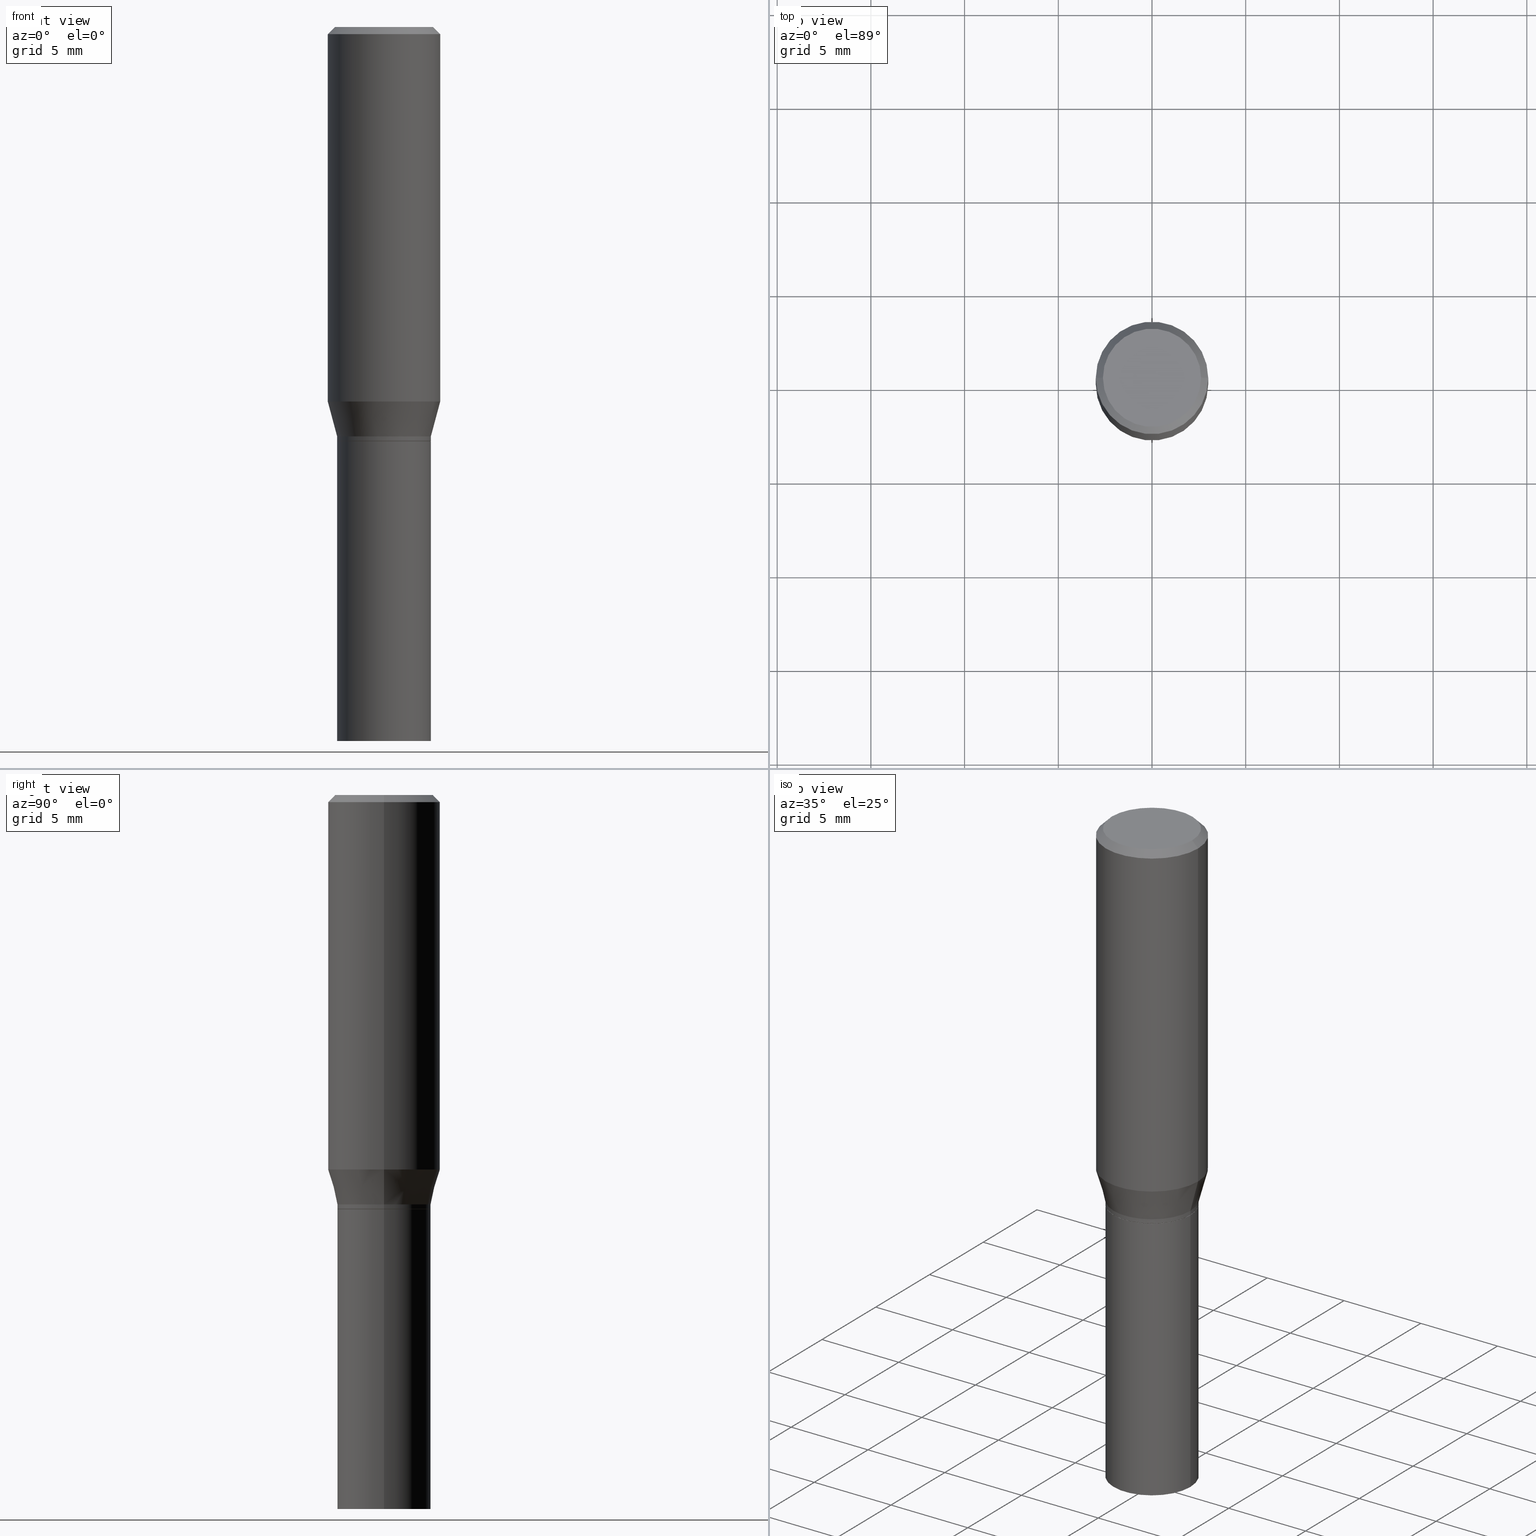
[diagram: canonical four-view strip — front | top / right | iso, engineering-drawing reading convention]
A machine part, canonical four-view strip (front | top / right | iso — engineering-drawing reading convention). The complete STEP part file that produces these views, byte-faithful:
ISO-10303-21;
HEADER;
FILE_DESCRIPTION (( 'STEP AP203' ),
    '1' );
FILE_NAME ('48764.STEP',
    '2024-03-12T19:46:37',
    ( '' ),
    ( '' ),
    'SwSTEP 2.0',
    'SolidWorks 2023',
    '' );
FILE_SCHEMA (( 'CONFIG_CONTROL_DESIGN' ));
ENDSEC;

DATA;
#1 = CARTESIAN_POINT ( 'NONE',  ( -0.1180999999999999966, -5.605231488820216014E-16, -0.01499999999999999944 ) ) ;
#2 = AXIS2_PLACEMENT_3D ( 'NONE', #228, #89, #384 ) ;
#3 = LOCAL_TIME ( 15, 46, 37.00000000000000000, #78 ) ;
#4 = EDGE_LOOP ( 'NONE', ( #192, #173, #324, #85 ) ) ;
#5 = PERSON_AND_ORGANIZATION ( #108, #209 ) ;
#6 = DIRECTION ( 'NONE',  ( 2.445468806185136597E-29, -3.491481338843145583E-15, -1.000000000000000000 ) ) ;
#7 = APPLICATION_PROTOCOL_DEFINITION ( 'international standard', 'config_control_design', 1994, #184 ) ;
#8 = PRODUCT_DEFINITION_FORMATION_WITH_SPECIFIED_SOURCE ( 'ANY', '', #127, .NOT_KNOWN. ) ;
#9 = SHAPE_DEFINITION_REPRESENTATION ( #56, #102 ) ;
#10 = EDGE_CURVE ( 'NONE', #82, #258, #183, .T. ) ;
#11 = COORDINATED_UNIVERSAL_TIME_OFFSET ( 5, 0, .BEHIND. ) ;
#12 = VERTEX_POINT ( 'NONE', #271 ) ;
#13 = DIRECTION ( 'NONE',  ( 1.000000000000000000, -6.982962677686267499E-15, 0.000000000000000000 ) ) ;
#14 = AXIS2_PLACEMENT_3D ( 'NONE', #18, #303, #174 ) ;
#15 = CARTESIAN_POINT ( 'NONE',  ( 0.09844999999999999585, -6.874726756182129545E-16, 4.800596035771099214E-30 ) ) ;
#16 = DIRECTION ( 'NONE',  ( -2.445468806185136597E-29, 3.491481338843145583E-15, 1.000000000000000000 ) ) ;
#17 = EDGE_LOOP ( 'NONE', ( #387, #392 ) ) ;
#18 = CARTESIAN_POINT ( 'NONE',  ( 4.647400995173613138E-45, -6.635256932220833331E-31, -1.900413116462290932E-16 ) ) ;
#19 = CYLINDRICAL_SURFACE ( 'NONE', #112, 0.1180999999999999966 ) ;
#20 = DIRECTION ( 'NONE',  ( -0.2588190451025215166, 5.211531920934551042E-15, 0.9659258262890679791 ) ) ;
#21 = ORIENTED_EDGE ( 'NONE', *, *, #117, .T. ) ;
#22 = DIRECTION ( 'NONE',  ( 0.7071067811863663843, -2.468850131080359456E-15, 0.7071067811867286501 ) ) ;
#23 = DIRECTION ( 'NONE',  ( -2.445468806185136597E-29, 3.491481338843145583E-15, 1.000000000000000000 ) ) ;
#24 = CYLINDRICAL_SURFACE ( 'NONE', #391, 0.09845000000000005136 ) ;
#25 = ORIENTED_EDGE ( 'NONE', *, *, #93, .F. ) ;
#26 = DIRECTION ( 'NONE',  ( -2.445468806185136597E-29, 3.491481338843145583E-15, 1.000000000000000000 ) ) ;
#27 = DIRECTION ( 'NONE',  ( 1.000000000000000000, -6.982962677686266711E-15, 4.876176775795936353E-29 ) ) ;
#28 = CARTESIAN_POINT ( 'NONE',  ( 3.668203209277705088E-31, -5.237222008264718399E-17, -0.01499999999999999944 ) ) ;
#29 = ORIENTED_EDGE ( 'NONE', *, *, #338, .T. ) ;
#30 = CARTESIAN_POINT ( 'NONE',  ( 3.668203209277705088E-31, -5.237222008264718399E-17, -0.01499999999999999944 ) ) ;
#31 = DIRECTION ( 'NONE',  ( 0.000000000000000000, 0.000000000000000000, 1.000000000000000000 ) ) ;
#32 =( CONVERSION_BASED_UNIT ( 'INCH', #99 ) LENGTH_UNIT ( ) NAMED_UNIT ( #130 ) );
#33 = CONICAL_SURFACE ( 'NONE', #70, 0.09845000000000017626, 0.2617993877991502405 ) ;
#34 = AXIS2_PLACEMENT_3D ( 'NONE', #371, #23, #377 ) ;
#35 = AXIS2_PLACEMENT_3D ( 'NONE', #427, #422, #313 ) ;
#36 = MECHANICAL_CONTEXT ( 'NONE', #283, 'mechanical' ) ;
#37 = ADVANCED_FACE ( 'NONE', ( #307 ), #66, .T. ) ;
#38 = DATE_AND_TIME ( #291, #44 ) ;
#39 = COORDINATED_UNIVERSAL_TIME_OFFSET ( 5, 0, .BEHIND. ) ;
#40 = AXIS2_PLACEMENT_3D ( 'NONE', #456, #16, #53 ) ;
#41 = EDGE_LOOP ( 'NONE', ( #139, #21, #354, #113 ) ) ;
#42 = CONICAL_SURFACE ( 'NONE', #213, 0.1180999999999999966, 0.7853981633974543852 ) ;
#43 = APPROVAL_STATUS ( 'not_yet_approved' ) ;
#44 = LOCAL_TIME ( 15, 46, 37.00000000000000000, #73 ) ;
#45 = CC_DESIGN_PERSON_AND_ORGANIZATION_ASSIGNMENT ( #328, #367, ( #8 ) ) ;
#46 = LINE ( 'NONE', #191, #186 ) ;
#47 = CARTESIAN_POINT ( 'NONE',  ( 0.09794999999999999540, -3.721919107206791548E-15, -0.8701000000000002066 ) ) ;
#48 = CARTESIAN_POINT ( 'NONE',  ( 2.103347720199836269E-29, -3.003023099538989951E-15, -0.8601000000000000867 ) ) ;
#49 = ORIENTED_EDGE ( 'NONE', *, *, #97, .F. ) ;
#50 = AXIS2_PLACEMENT_3D ( 'NONE', #196, #419, #454 ) ;
#51 = CARTESIAN_POINT ( 'NONE',  ( 2.103347720199836269E-29, -3.003023099538989951E-15, -0.8601000000000000867 ) ) ;
#52 = CARTESIAN_POINT ( 'NONE',  ( 0.09845000000000017626, -3.690495775157203695E-15, -0.8601000000000000867 ) ) ;
#53 = DIRECTION ( 'NONE',  ( 1.000000000000000000, -6.982962677686265133E-15, 0.000000000000000000 ) ) ;
#54 = ORIENTED_EDGE ( 'NONE', *, *, #167, .T. ) ;
#55 = CARTESIAN_POINT ( 'NONE',  ( 0.000000000000000000, 0.000000000000000000, 0.000000000000000000 ) ) ;
#56 = PRODUCT_DEFINITION_SHAPE ( 'NONE', 'NONE',  #292 ) ;
#57 = FACE_OUTER_BOUND ( 'NONE', #347, .T. ) ;
#58 = FACE_OUTER_BOUND ( 'NONE', #374, .T. ) ;
#59 = EDGE_LOOP ( 'NONE', ( #273, #362, #276, #426 ) ) ;
#60 = DIRECTION ( 'NONE',  ( -2.445468806185136597E-29, 3.491481338843145583E-15, 1.000000000000000000 ) ) ;
#61 = CARTESIAN_POINT ( 'NONE',  ( 0.09845000000000005136, -6.874726756182133489E-16, 4.800596035771100615E-30 ) ) ;
#62 = CARTESIAN_POINT ( 'NONE',  ( 0.1180999999999999966, -8.246878922347480654E-16, 5.758764772215000440E-30 ) ) ;
#63 = ORIENTED_EDGE ( 'NONE', *, *, #444, .T. ) ;
#64 =( LENGTH_UNIT ( ) NAMED_UNIT ( * ) SI_UNIT ( $, .METRE. ) );
#65 = ADVANCED_FACE ( 'NONE', ( #90 ), #342, .F. ) ;
#66 = CONICAL_SURFACE ( 'NONE', #458, 0.09794999999999999540, 0.7853981633971921505 ) ;
#67 = AXIS2_PLACEMENT_3D ( 'NONE', #159, #351, #460 ) ;
#68 = VECTOR ( 'NONE', #262, 39.37007874015748854 ) ;
#69 = ADVANCED_FACE ( 'NONE', ( #385 ), #219, .F. ) ;
#70 = AXIS2_PLACEMENT_3D ( 'NONE', #51, #60, #162 ) ;
#71 = VERTEX_POINT ( 'NONE', #298 ) ;
#72 = CALENDAR_DATE ( 2024, 12, 3 ) ;
#73 = COORDINATED_UNIVERSAL_TIME_OFFSET ( 5, 0, .BEHIND. ) ;
#74 = EDGE_CURVE ( 'NONE', #188, #290, #205, .T. ) ;
#75 = CIRCLE ( 'NONE', #140, 0.1180999999999999966 ) ;
#76 = CC_DESIGN_PERSON_AND_ORGANIZATION_ASSIGNMENT ( #443, #370, ( #8 ) ) ;
#77 = VECTOR ( 'NONE', #415, 39.37007874015748143 ) ;
#78 = COORDINATED_UNIVERSAL_TIME_OFFSET ( 5, 0, .BEHIND. ) ;
#79 = DIRECTION ( 'NONE',  ( -2.445468806185136597E-29, 3.491481338843145583E-15, 1.000000000000000000 ) ) ;
#80 = CARTESIAN_POINT ( 'NONE',  ( 0.000000000000000000, 0.000000000000000000, 0.000000000000000000 ) ) ;
#81 = DIRECTION ( 'NONE',  ( -2.445468806185136597E-29, 3.491481338843145583E-15, 1.000000000000000000 ) ) ;
#82 = VERTEX_POINT ( 'NONE', #314 ) ;
#83 = CARTESIAN_POINT ( 'NONE',  ( 0.09844999999999999585, -5.924694683882931526E-15, -1.500000000000000222 ) ) ;
#84 = DIRECTION ( 'NONE',  ( -2.445468806185136877E-29, 3.491481338843145188E-15, 1.000000000000000000 ) ) ;
#85 = ORIENTED_EDGE ( 'NONE', *, *, #336, .F. ) ;
#86 = DIRECTION ( 'NONE',  ( -2.445468806185136597E-29, 3.491481338843145583E-15, 1.000000000000000000 ) ) ;
#87 = CARTESIAN_POINT ( 'NONE',  ( 2.127802408261687534E-29, -3.037937912927421601E-15, -0.8701000000000000956 ) ) ;
#88 = ORIENTED_EDGE ( 'NONE', *, *, #74, .F. ) ;
#89 = DIRECTION ( 'NONE',  ( -2.438088387897960049E-29, 3.491481338843145188E-15, 1.000000000000000000 ) ) ;
#90 = FACE_OUTER_BOUND ( 'NONE', #145, .T. ) ;
#91 = DIRECTION ( 'NONE',  ( -2.445468806185136877E-29, 3.491481338843145188E-15, 1.000000000000000000 ) ) ;
#92 = EDGE_LOOP ( 'NONE', ( #462, #439, #217, #365 ) ) ;
#93 = EDGE_CURVE ( 'NONE', #429, #438, #267, .T. ) ;
#94 = DIRECTION ( 'NONE',  ( -2.445468806185136597E-29, 3.491481338843145583E-15, 1.000000000000000000 ) ) ;
#95 = FACE_OUTER_BOUND ( 'NONE', #180, .T. ) ;
#96 = ORIENTED_EDGE ( 'NONE', *, *, #212, .T. ) ;
#97 = EDGE_CURVE ( 'NONE', #133, #156, #115, .T. ) ;
#98 = EDGE_CURVE ( 'NONE', #156, #198, #208, .T. ) ;
#99 = LENGTH_MEASURE_WITH_UNIT ( LENGTH_MEASURE( 0.02539999999999999897 ), #64 );
#100 = AXIS2_PLACEMENT_3D ( 'NONE', #87, #172, #296 ) ;
#101 = CIRCLE ( 'NONE', #35, 0.09794999999999999540 ) ;
#102 = ADVANCED_BREP_SHAPE_REPRESENTATION ( '48764', ( #437, #125, #157 ), #142 ) ;
#103 = EDGE_CURVE ( 'NONE', #156, #12, #266, .T. ) ;
#104 = PERSON_AND_ORGANIZATION ( #108, #209 ) ;
#105 = AXIS2_PLACEMENT_3D ( 'NONE', #410, #372, #158 ) ;
#106 = AXIS2_PLACEMENT_3D ( 'NONE', #236, #200, #388 ) ;
#107 = PERSON_AND_ORGANIZATION_ROLE ( 'classification_officer' ) ;
#108 = PERSON ( 'UNSPECIFIED', 'UNSPECIFIED', 'UNSPECIFIED', ('UNSPECIFIED'), ('UNSPECIFIED'), ('UNSPECIFIED') ) ;
#109 = CALENDAR_DATE ( 2024, 12, 3 ) ;
#110 = ADVANCED_FACE ( 'NONE', ( #57 ), #194, .F. ) ;
#111 = APPROVAL_STATUS ( 'not_yet_approved' ) ;
#112 = AXIS2_PLACEMENT_3D ( 'NONE', #80, #414, #27 ) ;
#113 = ORIENTED_EDGE ( 'NONE', *, *, #323, .F. ) ;
#114 = AXIS2_PLACEMENT_3D ( 'NONE', #30, #346, #309 ) ;
#115 = LINE ( 'NONE', #61, #225 ) ;
#116 = ORIENTED_EDGE ( 'NONE', *, *, #171, .T. ) ;
#117 = EDGE_CURVE ( 'NONE', #71, #238, #201, .T. ) ;
#118 = CARTESIAN_POINT ( 'NONE',  ( 0.09845000000000017626, -3.690495775157203695E-15, -0.8601000000000000867 ) ) ;
#119 = CARTESIAN_POINT ( 'NONE',  ( -0.1180999999999999966, 7.723156721521009862E-16, -0.01499999999999999944 ) ) ;
#120 = EDGE_LOOP ( 'NONE', ( #226, #144, #161, #379 ) ) ;
#121 = CARTESIAN_POINT ( 'NONE',  ( -0.09844999999999999585, 6.995293233558186035E-16, -4.842691596355954042E-30 ) ) ;
#122 = CARTESIAN_POINT ( 'NONE',  ( 0.1180999999999999966, -8.770601123173952432E-16, -0.01499999999999999944 ) ) ;
#123 = PRODUCT_RELATED_PRODUCT_CATEGORY ( 'detail', '', ( #127 ) ) ;
#124 = DIRECTION ( 'NONE',  ( 1.000000000000000000, -6.982962677686267499E-15, 0.000000000000000000 ) ) ;
#125 = MANIFOLD_SOLID_BREP ( 'Body-Move/Copy2[2]', #435 ) ;
#126 = ORIENTED_EDGE ( 'NONE', *, *, #141, .T. ) ;
#127 = PRODUCT ( '48764', '48764', '', ( #36 ) ) ;
#128 = CARTESIAN_POINT ( 'NONE',  ( 0.1031000000000000111, -7.849571885948552706E-16, -1.900413116462238423E-16 ) ) ;
#129 = LOCAL_TIME ( 15, 46, 37.00000000000000000, #11 ) ;
#130 = DIMENSIONAL_EXPONENTS ( 1.000000000000000000, 0.000000000000000000, 0.000000000000000000, 0.000000000000000000, 0.000000000000000000, 0.000000000000000000, 0.000000000000000000 ) ;
#131 = DIRECTION ( 'NONE',  ( 1.000000000000000000, -6.982962677686266711E-15, 0.000000000000000000 ) ) ;
#132 = LINE ( 'NONE', #237, #418 ) ;
#133 = VERTEX_POINT ( 'NONE', #337 ) ;
#134 = CARTESIAN_POINT ( 'NONE',  ( 0.09794999999999999540, -3.721919107206791548E-15, -0.8701000000000002066 ) ) ;
#135 = DIRECTION ( 'NONE',  ( 1.000000000000000000, -6.982962677686265922E-15, 0.000000000000000000 ) ) ;
#136 = ORIENTED_EDGE ( 'NONE', *, *, #93, .T. ) ;
#137 = CARTESIAN_POINT ( 'NONE',  ( 2.126579673858595013E-29, -3.036192172257999703E-15, -0.8696000000000000396 ) ) ;
#138 = DIRECTION ( 'NONE',  ( -2.445468806185136597E-29, 3.491481338843145583E-15, 1.000000000000000000 ) ) ;
#139 = ORIENTED_EDGE ( 'NONE', *, *, #247, .T. ) ;
#140 = AXIS2_PLACEMENT_3D ( 'NONE', #160, #299, #382 ) ;
#141 = EDGE_CURVE ( 'NONE', #204, #290, #223, .T. ) ;
#142 =( GEOMETRIC_REPRESENTATION_CONTEXT ( 3 ) GLOBAL_UNCERTAINTY_ASSIGNED_CONTEXT ( ( #395 ) ) GLOBAL_UNIT_ASSIGNED_CONTEXT ( ( #32, #279, #143 ) ) REPRESENTATION_CONTEXT ( 'NONE', 'WORKASPACE' ) );
#143 =( NAMED_UNIT ( * ) SI_UNIT ( $, .STERADIAN. ) SOLID_ANGLE_UNIT ( ) );
#144 = ORIENTED_EDGE ( 'NONE', *, *, #405, .T. ) ;
#145 = EDGE_LOOP ( 'NONE', ( #220, #311 ) ) ;
#146 = FACE_OUTER_BOUND ( 'NONE', #169, .T. ) ;
#147 = PERSON_AND_ORGANIZATION ( #108, #209 ) ;
#148 = DATE_AND_TIME ( #109, #211 ) ;
#149 = AXIS2_PLACEMENT_3D ( 'NONE', #340, #221, #302 ) ;
#150 = DATE_TIME_ROLE ( 'creation_date' ) ;
#151 = ADVANCED_FACE ( 'NONE', ( #423 ), #19, .T. ) ;
#152 = ADVANCED_FACE ( 'NONE', ( #257 ), #216, .T. ) ;
#153 = SECURITY_CLASSIFICATION_LEVEL ( 'unclassified' ) ;
#154 = CARTESIAN_POINT ( 'NONE',  ( 2.127802408261687814E-29, -3.037937912927421995E-15, -0.8701000000000002066 ) ) ;
#155 = AXIS2_PLACEMENT_3D ( 'NONE', #393, #349, #434 ) ;
#156 = VERTEX_POINT ( 'NONE', #52 ) ;
#157 = AXIS2_PLACEMENT_3D ( 'NONE', #207, #31, #318 ) ;
#158 = DIRECTION ( 'NONE',  ( 1.000000000000000000, -6.982962677686266711E-15, 4.876176775795936353E-29 ) ) ;
#159 = CARTESIAN_POINT ( 'NONE',  ( 3.576687321579069994E-29, -5.368277968210015545E-15, -1.500000000000000222 ) ) ;
#160 = CARTESIAN_POINT ( 'NONE',  ( 1.924009758381236534E-29, -2.746976019546752715E-15, -0.7867652016312725038 ) ) ;
#161 = ORIENTED_EDGE ( 'NONE', *, *, #323, .T. ) ;
#162 = DIRECTION ( 'NONE',  ( 1.000000000000000000, -6.982962677686267499E-15, 0.000000000000000000 ) ) ;
#163 = CARTESIAN_POINT ( 'NONE',  ( 2.126579673858595013E-29, -3.036192172257999703E-15, -0.8696000000000000396 ) ) ;
#164 = DIRECTION ( 'NONE',  ( -1.000000000000000000, 6.982962677686266711E-15, 0.000000000000000000 ) ) ;
#165 = ORIENTED_EDGE ( 'NONE', *, *, #329, .F. ) ;
#166 = CARTESIAN_POINT ( 'NONE',  ( -0.09844999999999999585, -3.438050637240251581E-15, -0.8701000000000000956 ) ) ;
#167 = EDGE_CURVE ( 'NONE', #133, #258, #294, .T. ) ;
#168 = DIRECTION ( 'NONE',  ( -2.445468806185136597E-29, 3.491481338843145583E-15, 1.000000000000000000 ) ) ;
#169 = EDGE_LOOP ( 'NONE', ( #268, #96, #126, #88 ) ) ;
#170 = AXIS2_PLACEMENT_3D ( 'NONE', #430, #94, #222 ) ;
#171 = EDGE_CURVE ( 'NONE', #429, #466, #46, .T. ) ;
#172 = DIRECTION ( 'NONE',  ( -2.445468806185136597E-29, 3.491481338843145583E-15, 1.000000000000000000 ) ) ;
#173 = ORIENTED_EDGE ( 'NONE', *, *, #214, .T. ) ;
#174 = DIRECTION ( 'NONE',  ( 1.000000000000000000, -6.982962677686265922E-15, 4.883331232093008327E-29 ) ) ;
#175 = DIRECTION ( 'NONE',  ( -2.445468806185136597E-29, 3.491481338843145583E-15, 1.000000000000000000 ) ) ;
#176 = ADVANCED_FACE ( 'NONE', ( #275 ), #321, .T. ) ;
#177 = VECTOR ( 'NONE', #22, 39.37007874015748143 ) ;
#178 = EDGE_CURVE ( 'NONE', #198, #156, #389, .T. ) ;
#179 = ADVANCED_FACE ( 'NONE', ( #146 ), #386, .T. ) ;
#180 = EDGE_LOOP ( 'NONE', ( #25, #116, #29, #263 ) ) ;
#181 = APPROVAL_DATE_TIME ( #406, #253 ) ;
#182 = DATE_AND_TIME ( #254, #285 ) ;
#183 = LINE ( 'NONE', #401, #248 ) ;
#184 = APPLICATION_CONTEXT ( 'configuration controlled 3d designs of mechanical parts and assemblies' ) ;
#185 = APPROVAL_DATE_TIME ( #38, #288 ) ;
#186 = VECTOR ( 'NONE', #333, 39.37007874015748854 ) ;
#187 = APPROVAL_PERSON_ORGANIZATION ( #440, #288, #441 ) ;
#188 = VERTEX_POINT ( 'NONE', #166 ) ;
#189 = DATE_AND_TIME ( #72, #3 ) ;
#190 = ADVANCED_FACE ( 'NONE', ( #421 ), #447, .T. ) ;
#191 = CARTESIAN_POINT ( 'NONE',  ( 0.1180999999999999966, -8.625970336194650129E-16, -0.01499999999999999944 ) ) ;
#192 = ORIENTED_EDGE ( 'NONE', *, *, #10, .F. ) ;
#193 = CARTESIAN_POINT ( 'NONE',  ( -0.1031000000000000111, 7.461295621107772493E-16, -1.900413116462341961E-16 ) ) ;
#194 = PLANE ( 'NONE',  #368 ) ;
#195 = EDGE_LOOP ( 'NONE', ( #339, #306, #231, #326 ) ) ;
#196 = CARTESIAN_POINT ( 'NONE',  ( 6.874726756182340565E-16, 0.09844999999999695661, -0.8701000000000005397 ) ) ;
#197 = CARTESIAN_POINT ( 'NONE',  ( -0.09844999999999991258, -2.336662848902181986E-15, -0.8696000000000000396 ) ) ;
#198 = VERTEX_POINT ( 'NONE', #232 ) ;
#199 = EDGE_CURVE ( 'NONE', #316, #188, #259, .T. ) ;
#200 = DIRECTION ( 'NONE',  ( -2.445468806185136597E-29, 3.491481338843145583E-15, 1.000000000000000000 ) ) ;
#201 = LINE ( 'NONE', #261, #363 ) ;
#202 = ORIENTED_EDGE ( 'NONE', *, *, #425, .F. ) ;
#203 = DIRECTION ( 'NONE',  ( 0.2588190451025215166, 1.565188264969620784E-15, 0.9659258262890679791 ) ) ;
#204 = VERTEX_POINT ( 'NONE', #83 ) ;
#205 = CIRCLE ( 'NONE', #100, 0.09844999999999999585 ) ;
#206 = DIRECTION ( 'NONE',  ( -2.445468806185136597E-29, 3.491481338843145583E-15, 1.000000000000000000 ) ) ;
#207 = CARTESIAN_POINT ( 'NONE',  ( 0.000000000000000000, 0.000000000000000000, 0.000000000000000000 ) ) ;
#208 = CIRCLE ( 'NONE', #210, 0.09845000000000017626 ) ;
#209 = ORGANIZATION ( 'UNSPECIFIED', 'UNSPECIFIED', '' ) ;
#210 = AXIS2_PLACEMENT_3D ( 'NONE', #48, #450, #124 ) ;
#211 = LOCAL_TIME ( 15, 46, 37.00000000000000000, #39 ) ;
#212 = EDGE_CURVE ( 'NONE', #316, #204, #359, .T. ) ;
#213 = AXIS2_PLACEMENT_3D ( 'NONE', #245, #6, #218 ) ;
#214 = EDGE_CURVE ( 'NONE', #82, #383, #284, .T. ) ;
#215 = CALENDAR_DATE ( 2024, 12, 3 ) ;
#216 = CYLINDRICAL_SURFACE ( 'NONE', #34, 0.09845000000000005136 ) ;
#217 = ORIENTED_EDGE ( 'NONE', *, *, #286, .F. ) ;
#218 = DIRECTION ( 'NONE',  ( -1.000000000000000000, 6.982962677686266711E-15, 0.000000000000000000 ) ) ;
#219 = PLANE ( 'NONE',  #50 ) ;
#220 = ORIENTED_EDGE ( 'NONE', *, *, #409, .F. ) ;
#221 = DIRECTION ( 'NONE',  ( -2.445468806185136597E-29, 3.491481338843145583E-15, 1.000000000000000000 ) ) ;
#222 = DIRECTION ( 'NONE',  ( 1.000000000000000000, -6.982962677686265922E-15, 0.000000000000000000 ) ) ;
#223 = LINE ( 'NONE', #15, #278 ) ;
#224 = FACE_OUTER_BOUND ( 'NONE', #59, .T. ) ;
#225 = VECTOR ( 'NONE', #229, 39.37007874015748143 ) ;
#226 = ORIENTED_EDGE ( 'NONE', *, *, #117, .F. ) ;
#227 = CONICAL_SURFACE ( 'NONE', #353, 0.09845000000000017626, 0.2617993877991502405 ) ;
#228 = CARTESIAN_POINT ( 'NONE',  ( 2.127802408261687534E-29, -3.037937912927421601E-15, -0.8701000000000000956 ) ) ;
#229 = DIRECTION ( 'NONE',  ( -2.445468806185136877E-29, 3.491481338843145188E-15, 1.000000000000000000 ) ) ;
#230 = CC_DESIGN_PERSON_AND_ORGANIZATION_ASSIGNMENT ( #104, #107, ( #312 ) ) ;
#231 = ORIENTED_EDGE ( 'NONE', *, *, #247, .F. ) ;
#232 = CARTESIAN_POINT ( 'NONE',  ( -0.09845000000000017626, -2.105659412398621996E-15, -0.8601000000000000867 ) ) ;
#233 = DIRECTION ( 'NONE',  ( 1.000000000000000000, -6.982962677686265922E-15, 4.883331232093008327E-29 ) ) ;
#234 = DIRECTION ( 'NONE',  ( 1.000000000000000000, -6.982962677686266711E-15, 0.000000000000000000 ) ) ;
#235 = ORIENTED_EDGE ( 'NONE', *, *, #178, .T. ) ;
#236 = CARTESIAN_POINT ( 'NONE',  ( 0.000000000000000000, 0.000000000000000000, 0.000000000000000000 ) ) ;
#237 = CARTESIAN_POINT ( 'NONE',  ( -0.09845000000000017626, -2.303493776183169474E-15, -0.8601000000000000867 ) ) ;
#238 = VERTEX_POINT ( 'NONE', #1 ) ;
#239 = AXIS2_PLACEMENT_3D ( 'NONE', #408, #81, #233 ) ;
#240 = CIRCLE ( 'NONE', #269, 0.1180999999999999966 ) ;
#241 = ADVANCED_FACE ( 'NONE', ( #95 ), #243, .T. ) ;
#242 = CLOSED_SHELL ( 'NONE', ( #445, #65, #179, #69 ) ) ;
#243 = CONICAL_SURFACE ( 'NONE', #417, 0.1180999999999999966, 0.7853981633974543852 ) ;
#244 = CC_DESIGN_APPROVAL ( #288, ( #8 ) ) ;
#245 = CARTESIAN_POINT ( 'NONE',  ( 3.668203209277705088E-31, -5.237222008264718399E-17, -0.01499999999999999944 ) ) ;
#246 = PERSON_AND_ORGANIZATION ( #108, #209 ) ;
#247 = EDGE_CURVE ( 'NONE', #12, #71, #75, .T. ) ;
#248 = VECTOR ( 'NONE', #304, 39.37007874015748143 ) ;
#249 = EDGE_CURVE ( 'NONE', #238, #466, #360, .T. ) ;
#250 = AXIS2_PLACEMENT_3D ( 'NONE', #378, #206, #135 ) ;
#251 = ORIENTED_EDGE ( 'NONE', *, *, #286, .T. ) ;
#252 = PERSON_AND_ORGANIZATION ( #108, #209 ) ;
#253 = APPROVAL ( #111, 'UNSPECIFIED' ) ;
#254 = CALENDAR_DATE ( 2024, 12, 3 ) ;
#255 = PERSON_AND_ORGANIZATION_ROLE ( 'creator' ) ;
#256 = CC_DESIGN_APPROVAL ( #282, ( #312 ) ) ;
#257 = FACE_OUTER_BOUND ( 'NONE', #412, .T. ) ;
#258 = VERTEX_POINT ( 'NONE', #197 ) ;
#259 = LINE ( 'NONE', #121, #376 ) ;
#260 = FACE_OUTER_BOUND ( 'NONE', #195, .T. ) ;
#261 = CARTESIAN_POINT ( 'NONE',  ( -0.1180999999999999966, 8.391509709326782957E-16, -5.809262341591043784E-30 ) ) ;
#262 = DIRECTION ( 'NONE',  ( -0.7071067811865516806, 2.468850131082300842E-15, -0.7071067811865431318 ) ) ;
#263 = ORIENTED_EDGE ( 'NONE', *, *, #348, .F. ) ;
#264 = DIRECTION ( 'NONE',  ( -2.445468806185136877E-29, 3.491481338843145188E-15, 1.000000000000000000 ) ) ;
#265 = LINE ( 'NONE', #47, #177 ) ;
#266 = LINE ( 'NONE', #118, #403 ) ;
#267 = CIRCLE ( 'NONE', #239, 0.1031000000000000111 ) ;
#268 = ORIENTED_EDGE ( 'NONE', *, *, #199, .F. ) ;
#269 = AXIS2_PLACEMENT_3D ( 'NONE', #28, #390, #277 ) ;
#270 = DIRECTION ( 'NONE',  ( 1.000000000000000000, -6.982962677686269077E-15, 0.000000000000000000 ) ) ;
#271 = CARTESIAN_POINT ( 'NONE',  ( 0.1180999999999999966, -3.571663911781501372E-15, -0.7867652016312725038 ) ) ;
#272 = LINE ( 'NONE', #424, #322 ) ;
#273 = ORIENTED_EDGE ( 'NONE', *, *, #171, .F. ) ;
#274 = PLANE ( 'NONE',  #2 ) ;
#275 = FACE_OUTER_BOUND ( 'NONE', #297, .T. ) ;
#276 = ORIENTED_EDGE ( 'NONE', *, *, #348, .T. ) ;
#277 = DIRECTION ( 'NONE',  ( 1.000000000000000000, -6.982962677686266711E-15, 0.000000000000000000 ) ) ;
#278 = VECTOR ( 'NONE', #345, 39.37007874015748143 ) ;
#279 =( NAMED_UNIT ( * ) PLANE_ANGLE_UNIT ( ) SI_UNIT ( $, .RADIAN. ) );
#280 = EDGE_LOOP ( 'NONE', ( #251, #420 ) ) ;
#281 = ADVANCED_FACE ( 'NONE', ( #58 ), #24, .T. ) ;
#282 = APPROVAL ( #43, 'UNSPECIFIED' ) ;
#283 = APPLICATION_CONTEXT ( 'configuration controlled 3d designs of mechanical parts and assemblies' ) ;
#284 = CIRCLE ( 'NONE', #40, 0.09794999999999999540 ) ;
#285 = LOCAL_TIME ( 15, 46, 37.00000000000000000, #404 ) ;
#286 = EDGE_CURVE ( 'NONE', #290, #188, #442, .T. ) ;
#287 = APPROVAL_ROLE ( '' ) ;
#288 = APPROVAL ( #327, 'UNSPECIFIED' ) ;
#289 = CIRCLE ( 'NONE', #14, 0.1031000000000000111 ) ;
#290 = VERTEX_POINT ( 'NONE', #465 ) ;
#291 = CALENDAR_DATE ( 2024, 12, 3 ) ;
#292 = PRODUCT_DEFINITION ( 'UNKNOWN', '', #8, #358 ) ;
#293 = ORIENTED_EDGE ( 'NONE', *, *, #329, .T. ) ;
#294 = CIRCLE ( 'NONE', #396, 0.09844999999999991258 ) ;
#295 = CIRCLE ( 'NONE', #170, 0.09844999999999999585 ) ;
#296 = DIRECTION ( 'NONE',  ( 1.000000000000000000, -6.982962677686265922E-15, 0.000000000000000000 ) ) ;
#297 = EDGE_LOOP ( 'NONE', ( #449, #343, #300, #202 ) ) ;
#298 = CARTESIAN_POINT ( 'NONE',  ( -0.1180999999999999966, -1.907825048614074518E-15, -0.7867652016312725038 ) ) ;
#299 = DIRECTION ( 'NONE',  ( -2.445468806185136597E-29, 3.491481338843145583E-15, 1.000000000000000000 ) ) ;
#300 = ORIENTED_EDGE ( 'NONE', *, *, #167, .F. ) ;
#301 = EDGE_CURVE ( 'NONE', #198, #71, #132, .T. ) ;
#302 = DIRECTION ( 'NONE',  ( 1.000000000000000000, -6.982962677686265922E-15, 0.000000000000000000 ) ) ;
#303 = DIRECTION ( 'NONE',  ( -2.445468806185136597E-29, 3.491481338843145583E-15, 1.000000000000000000 ) ) ;
#304 = DIRECTION ( 'NONE',  ( -0.7071067811863663843, 7.493145998869699406E-15, 0.7071067811867286501 ) ) ;
#305 = LINE ( 'NONE', #62, #77 ) ;
#306 = ORIENTED_EDGE ( 'NONE', *, *, #301, .T. ) ;
#307 = FACE_OUTER_BOUND ( 'NONE', #4, .T. ) ;
#308 = AXIS2_PLACEMENT_3D ( 'NONE', #319, #138, #394 ) ;
#309 = DIRECTION ( 'NONE',  ( 1.000000000000000000, -6.982962677686266711E-15, 0.000000000000000000 ) ) ;
#310 = AXIS2_PLACEMENT_3D ( 'NONE', #137, #451, #234 ) ;
#311 = ORIENTED_EDGE ( 'NONE', *, *, #212, .F. ) ;
#312 = SECURITY_CLASSIFICATION ( '', '', #153 ) ;
#313 = DIRECTION ( 'NONE',  ( 1.000000000000000000, -6.982962677686265133E-15, 0.000000000000000000 ) ) ;
#314 = CARTESIAN_POINT ( 'NONE',  ( -0.09794999999999999540, -2.339312076076292793E-15, -0.8701000000000002066 ) ) ;
#315 = DIRECTION ( 'NONE',  ( 2.445468806185136597E-29, -3.491481338843145583E-15, -1.000000000000000000 ) ) ;
#316 = VERTEX_POINT ( 'NONE', #357 ) ;
#317 = CC_DESIGN_PERSON_AND_ORGANIZATION_ASSIGNMENT ( #5, #255, ( #292 ) ) ;
#318 = DIRECTION ( 'NONE',  ( 1.000000000000000000, 0.000000000000000000, 0.000000000000000000 ) ) ;
#319 = CARTESIAN_POINT ( 'NONE',  ( 2.127802408261687814E-29, -3.037937912927421995E-15, -0.8701000000000002066 ) ) ;
#320 = EDGE_LOOP ( 'NONE', ( #452, #235, #402, #398 ) ) ;
#321 = CONICAL_SURFACE ( 'NONE', #308, 0.09794999999999999540, 0.7853981633971921505 ) ;
#322 = VECTOR ( 'NONE', #91, 39.37007874015748143 ) ;
#323 = EDGE_CURVE ( 'NONE', #12, #466, #305, .T. ) ;
#324 = ORIENTED_EDGE ( 'NONE', *, *, #425, .T. ) ;
#325 = APPROVAL_ROLE ( '' ) ;
#326 = ORIENTED_EDGE ( 'NONE', *, *, #103, .F. ) ;
#327 = APPROVAL_STATUS ( 'not_yet_approved' ) ;
#328 = PERSON_AND_ORGANIZATION ( #108, #209 ) ;
#329 = EDGE_CURVE ( 'NONE', #258, #198, #272, .T. ) ;
#330 = APPROVAL_DATE_TIME ( #189, #282 ) ;
#331 = DATE_TIME_ROLE ( 'classification_date' ) ;
#332 = DIRECTION ( 'NONE',  ( 1.000000000000000000, -6.982962677686266711E-15, 4.876176775795936353E-29 ) ) ;
#333 = DIRECTION ( 'NONE',  ( 0.7071067811865516806, -7.319954787623268667E-15, -0.7071067811865431318 ) ) ;
#334 = ORIENTED_EDGE ( 'NONE', *, *, #98, .F. ) ;
#335 = AXIS2_PLACEMENT_3D ( 'NONE', #55, #79, #332 ) ;
#336 = EDGE_CURVE ( 'NONE', #258, #133, #436, .T. ) ;
#337 = CARTESIAN_POINT ( 'NONE',  ( 0.09844999999999991258, -3.723664847876212263E-15, -0.8696000000000000396 ) ) ;
#338 = EDGE_CURVE ( 'NONE', #466, #238, #240, .T. ) ;
#339 = ORIENTED_EDGE ( 'NONE', *, *, #98, .T. ) ;
#340 = CARTESIAN_POINT ( 'NONE',  ( 3.668203209277704895E-29, -5.237222008264718177E-15, -1.500000000000000222 ) ) ;
#341 = FACE_OUTER_BOUND ( 'NONE', #320, .T. ) ;
#342 = PLANE ( 'NONE',  #67 ) ;
#343 = ORIENTED_EDGE ( 'NONE', *, *, #10, .T. ) ;
#344 = CC_DESIGN_PERSON_AND_ORGANIZATION_ASSIGNMENT ( #246, #400, ( #127 ) ) ;
#345 = DIRECTION ( 'NONE',  ( -2.445468806185136877E-29, 3.491481338843145188E-15, 1.000000000000000000 ) ) ;
#346 = DIRECTION ( 'NONE',  ( -2.445468806185136597E-29, 3.491481338843145583E-15, 1.000000000000000000 ) ) ;
#347 = EDGE_LOOP ( 'NONE', ( #63, #136 ) ) ;
#348 = EDGE_CURVE ( 'NONE', #438, #238, #431, .T. ) ;
#349 = DIRECTION ( 'NONE',  ( -2.445468806185136597E-29, 3.491481338843145583E-15, 1.000000000000000000 ) ) ;
#350 = ADVANCED_FACE ( 'NONE', ( #224 ), #42, .T. ) ;
#351 = DIRECTION ( 'NONE',  ( -2.438088387897960049E-29, 3.491481338843145188E-15, 1.000000000000000000 ) ) ;
#352 = CARTESIAN_POINT ( 'NONE',  ( 3.668203209277705088E-31, -5.237222008264718399E-17, -0.01499999999999999944 ) ) ;
#353 = AXIS2_PLACEMENT_3D ( 'NONE', #355, #26, #13 ) ;
#354 = ORIENTED_EDGE ( 'NONE', *, *, #338, .F. ) ;
#355 = CARTESIAN_POINT ( 'NONE',  ( 2.103347720199836269E-29, -3.003023099538989951E-15, -0.8601000000000000867 ) ) ;
#356 = CC_DESIGN_DATE_AND_TIME_ASSIGNMENT ( #182, #331, ( #312 ) ) ;
#357 = CARTESIAN_POINT ( 'NONE',  ( -0.09844999999999999585, -3.438050637240251581E-15, -1.500000000000000222 ) ) ;
#358 = DESIGN_CONTEXT ( 'detailed design', #184, 'design' ) ;
#359 = CIRCLE ( 'NONE', #149, 0.09844999999999999585 ) ;
#360 = CIRCLE ( 'NONE', #114, 0.1180999999999999966 ) ;
#361 = ADVANCED_FACE ( 'NONE', ( #341 ), #227, .T. ) ;
#362 = ORIENTED_EDGE ( 'NONE', *, *, #444, .F. ) ;
#363 = VECTOR ( 'NONE', #84, 39.37007874015748143 ) ;
#364 = APPROVAL_PERSON_ORGANIZATION ( #252, #253, #325 ) ;
#365 = ORIENTED_EDGE ( 'NONE', *, *, #141, .F. ) ;
#366 = EDGE_CURVE ( 'NONE', #383, #82, #101, .T. ) ;
#367 = PERSON_AND_ORGANIZATION_ROLE ( 'creator' ) ;
#368 = AXIS2_PLACEMENT_3D ( 'NONE', #381, #464, #448 ) ;
#369 = AXIS2_PLACEMENT_3D ( 'NONE', #463, #86, #270 ) ;
#370 = PERSON_AND_ORGANIZATION_ROLE ( 'design_supplier' ) ;
#371 = CARTESIAN_POINT ( 'NONE',  ( 0.000000000000000000, 0.000000000000000000, 0.000000000000000000 ) ) ;
#372 = DIRECTION ( 'NONE',  ( -2.445468806185136597E-29, 3.491481338843145583E-15, 1.000000000000000000 ) ) ;
#373 = DIRECTION ( 'NONE',  ( 1.000000000000000000, -6.982962677686265133E-15, 0.000000000000000000 ) ) ;
#374 = EDGE_LOOP ( 'NONE', ( #54, #293, #334, #49 ) ) ;
#375 = FACE_OUTER_BOUND ( 'NONE', #17, .T. ) ;
#376 = VECTOR ( 'NONE', #264, 39.37007874015748143 ) ;
#377 = DIRECTION ( 'NONE',  ( 1.000000000000000000, -6.982962677686266711E-15, 4.876176775795935232E-29 ) ) ;
#378 = CARTESIAN_POINT ( 'NONE',  ( 2.127802408261687534E-29, -3.037937912927421601E-15, -0.8701000000000000956 ) ) ;
#379 = ORIENTED_EDGE ( 'NONE', *, *, #249, .F. ) ;
#380 = CYLINDRICAL_SURFACE ( 'NONE', #106, 0.09844999999999999585 ) ;
#381 = CARTESIAN_POINT ( 'NONE',  ( 7.199434520694541042E-16, 0.1031000000000000111, -4.549923818578428559E-16 ) ) ;
#382 = DIRECTION ( 'NONE',  ( 1.000000000000000000, -6.982962677686269077E-15, 0.000000000000000000 ) ) ;
#383 = VERTEX_POINT ( 'NONE', #134 ) ;
#384 = DIRECTION ( 'NONE',  ( 1.000000000000000000, -6.982962677686265922E-15, 4.876176775795935793E-29 ) ) ;
#385 = FACE_OUTER_BOUND ( 'NONE', #280, .T. ) ;
#386 = CYLINDRICAL_SURFACE ( 'NONE', #335, 0.09844999999999999585 ) ;
#387 = ORIENTED_EDGE ( 'NONE', *, *, #366, .F. ) ;
#388 = DIRECTION ( 'NONE',  ( 1.000000000000000000, -6.982962677686266711E-15, 4.876176775795936353E-29 ) ) ;
#389 = CIRCLE ( 'NONE', #155, 0.09845000000000017626 ) ;
#390 = DIRECTION ( 'NONE',  ( -2.445468806185136597E-29, 3.491481338843145583E-15, 1.000000000000000000 ) ) ;
#391 = AXIS2_PLACEMENT_3D ( 'NONE', #428, #175, #461 ) ;
#392 = ORIENTED_EDGE ( 'NONE', *, *, #214, .F. ) ;
#393 = CARTESIAN_POINT ( 'NONE',  ( 2.103347720199836269E-29, -3.003023099538989951E-15, -0.8601000000000000867 ) ) ;
#394 = DIRECTION ( 'NONE',  ( 1.000000000000000000, -6.982962677686265133E-15, 0.000000000000000000 ) ) ;
#395 = UNCERTAINTY_MEASURE_WITH_UNIT (LENGTH_MEASURE( 1.000000000000000082E-05 ), #32, 'distance_accuracy_value', 'NONE');
#396 = AXIS2_PLACEMENT_3D ( 'NONE', #163, #168, #131 ) ;
#397 = CIRCLE ( 'NONE', #369, 0.1180999999999999966 ) ;
#398 = ORIENTED_EDGE ( 'NONE', *, *, #405, .F. ) ;
#399 = APPLICATION_PROTOCOL_DEFINITION ( 'international standard', 'config_control_design', 1994, #283 ) ;
#400 = PERSON_AND_ORGANIZATION_ROLE ( 'design_owner' ) ;
#401 = CARTESIAN_POINT ( 'NONE',  ( -0.09794999999999999540, -2.341961303250403994E-15, -0.8701000000000002066 ) ) ;
#402 = ORIENTED_EDGE ( 'NONE', *, *, #103, .T. ) ;
#403 = VECTOR ( 'NONE', #203, 39.37007874015748143 ) ;
#404 = COORDINATED_UNIVERSAL_TIME_OFFSET ( 5, 0, .BEHIND. ) ;
#405 = EDGE_CURVE ( 'NONE', #71, #12, #397, .T. ) ;
#406 = DATE_AND_TIME ( #215, #129 ) ;
#407 = APPROVAL_PERSON_ORGANIZATION ( #147, #282, #287 ) ;
#408 = CARTESIAN_POINT ( 'NONE',  ( 4.647400995173613138E-45, -6.635256932220833331E-31, -1.900413116462290932E-16 ) ) ;
#409 = EDGE_CURVE ( 'NONE', #204, #316, #295, .T. ) ;
#410 = CARTESIAN_POINT ( 'NONE',  ( 0.000000000000000000, 0.000000000000000000, 0.000000000000000000 ) ) ;
#411 = DIRECTION ( 'NONE',  ( -2.445468806185136597E-29, 3.491481338843145583E-15, 1.000000000000000000 ) ) ;
#412 = EDGE_LOOP ( 'NONE', ( #165, #455, #416, #446 ) ) ;
#413 = ADVANCED_FACE ( 'NONE', ( #375 ), #274, .F. ) ;
#414 = DIRECTION ( 'NONE',  ( -2.445468806185136597E-29, 3.491481338843145583E-15, 1.000000000000000000 ) ) ;
#415 = DIRECTION ( 'NONE',  ( -2.445468806185136877E-29, 3.491481338843145188E-15, 1.000000000000000000 ) ) ;
#416 = ORIENTED_EDGE ( 'NONE', *, *, #97, .T. ) ;
#417 = AXIS2_PLACEMENT_3D ( 'NONE', #352, #315, #164 ) ;
#418 = VECTOR ( 'NONE', #20, 39.37007874015748143 ) ;
#419 = DIRECTION ( 'NONE',  ( 2.438088387897960049E-29, -3.491481338843145188E-15, -1.000000000000000000 ) ) ;
#420 = ORIENTED_EDGE ( 'NONE', *, *, #74, .T. ) ;
#421 = FACE_OUTER_BOUND ( 'NONE', #41, .T. ) ;
#422 = DIRECTION ( 'NONE',  ( -2.445468806185136597E-29, 3.491481338843145583E-15, 1.000000000000000000 ) ) ;
#423 = FACE_OUTER_BOUND ( 'NONE', #120, .T. ) ;
#424 = CARTESIAN_POINT ( 'NONE',  ( -0.09845000000000005136, 6.995293233558189979E-16, -4.842691596355956844E-30 ) ) ;
#425 = EDGE_CURVE ( 'NONE', #383, #133, #265, .T. ) ;
#426 = ORIENTED_EDGE ( 'NONE', *, *, #249, .T. ) ;
#427 = CARTESIAN_POINT ( 'NONE',  ( 2.127802408261687814E-29, -3.037937912927421995E-15, -0.8701000000000002066 ) ) ;
#428 = CARTESIAN_POINT ( 'NONE',  ( 0.000000000000000000, 0.000000000000000000, 0.000000000000000000 ) ) ;
#429 = VERTEX_POINT ( 'NONE', #128 ) ;
#430 = CARTESIAN_POINT ( 'NONE',  ( 3.668203209277704895E-29, -5.237222008264718177E-15, -1.500000000000000222 ) ) ;
#431 = LINE ( 'NONE', #119, #68 ) ;
#432 = CC_DESIGN_SECURITY_CLASSIFICATION ( #312, ( #8 ) ) ;
#433 = ADVANCED_FACE ( 'NONE', ( #260 ), #33, .T. ) ;
#434 = DIRECTION ( 'NONE',  ( 1.000000000000000000, -6.982962677686267499E-15, 0.000000000000000000 ) ) ;
#435 = CLOSED_SHELL ( 'NONE', ( #281, #176, #241, #190, #433, #361, #151, #350, #110, #413, #37, #152 ) ) ;
#436 = CIRCLE ( 'NONE', #310, 0.09844999999999991258 ) ;
#437 = MANIFOLD_SOLID_BREP ( 'Body-Move/Copy2[1]', #242 ) ;
#438 = VERTEX_POINT ( 'NONE', #193 ) ;
#439 = ORIENTED_EDGE ( 'NONE', *, *, #199, .T. ) ;
#440 = PERSON_AND_ORGANIZATION ( #108, #209 ) ;
#441 = APPROVAL_ROLE ( '' ) ;
#442 = CIRCLE ( 'NONE', #250, 0.09844999999999999585 ) ;
#443 = PERSON_AND_ORGANIZATION ( #108, #209 ) ;
#444 = EDGE_CURVE ( 'NONE', #438, #429, #289, .T. ) ;
#445 = ADVANCED_FACE ( 'NONE', ( #453 ), #380, .T. ) ;
#446 = ORIENTED_EDGE ( 'NONE', *, *, #178, .F. ) ;
#447 = CYLINDRICAL_SURFACE ( 'NONE', #105, 0.1180999999999999966 ) ;
#448 = DIRECTION ( 'NONE',  ( -1.000000000000000000, 6.982962677686265922E-15, -4.876176775795935793E-29 ) ) ;
#449 = ORIENTED_EDGE ( 'NONE', *, *, #366, .T. ) ;
#450 = DIRECTION ( 'NONE',  ( -2.445468806185136597E-29, 3.491481338843145583E-15, 1.000000000000000000 ) ) ;
#451 = DIRECTION ( 'NONE',  ( -2.445468806185136597E-29, 3.491481338843145583E-15, 1.000000000000000000 ) ) ;
#452 = ORIENTED_EDGE ( 'NONE', *, *, #301, .F. ) ;
#453 = FACE_OUTER_BOUND ( 'NONE', #92, .T. ) ;
#454 = DIRECTION ( 'NONE',  ( -1.000000000000000000, 6.982962677686265922E-15, -4.876176775795935793E-29 ) ) ;
#455 = ORIENTED_EDGE ( 'NONE', *, *, #336, .T. ) ;
#456 = CARTESIAN_POINT ( 'NONE',  ( 2.127802408261687814E-29, -3.037937912927421995E-15, -0.8701000000000002066 ) ) ;
#457 = CC_DESIGN_DATE_AND_TIME_ASSIGNMENT ( #148, #150, ( #292 ) ) ;
#458 = AXIS2_PLACEMENT_3D ( 'NONE', #154, #411, #373 ) ;
#459 = CC_DESIGN_APPROVAL ( #253, ( #292 ) ) ;
#460 = DIRECTION ( 'NONE',  ( 1.000000000000000000, -6.982962677686265922E-15, 4.876176775795935793E-29 ) ) ;
#461 = DIRECTION ( 'NONE',  ( 1.000000000000000000, -6.982962677686266711E-15, 4.876176775795935232E-29 ) ) ;
#462 = ORIENTED_EDGE ( 'NONE', *, *, #409, .T. ) ;
#463 = CARTESIAN_POINT ( 'NONE',  ( 1.924009758381236534E-29, -2.746976019546752715E-15, -0.7867652016312725038 ) ) ;
#464 = DIRECTION ( 'NONE',  ( 2.438088387897960049E-29, -3.491481338843145188E-15, -1.000000000000000000 ) ) ;
#465 = CARTESIAN_POINT ( 'NONE',  ( 0.09844999999999999585, -3.725410588545634555E-15, -0.8701000000000000956 ) ) ;
#466 = VERTEX_POINT ( 'NONE', #122 ) ;
ENDSEC;
END-ISO-10303-21;
